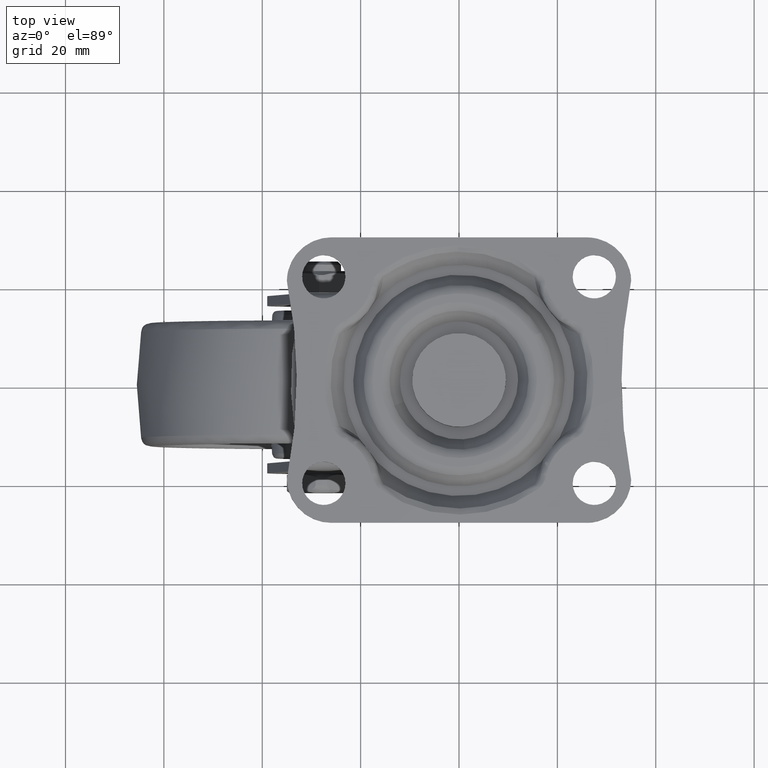
[diagram: clean part render]
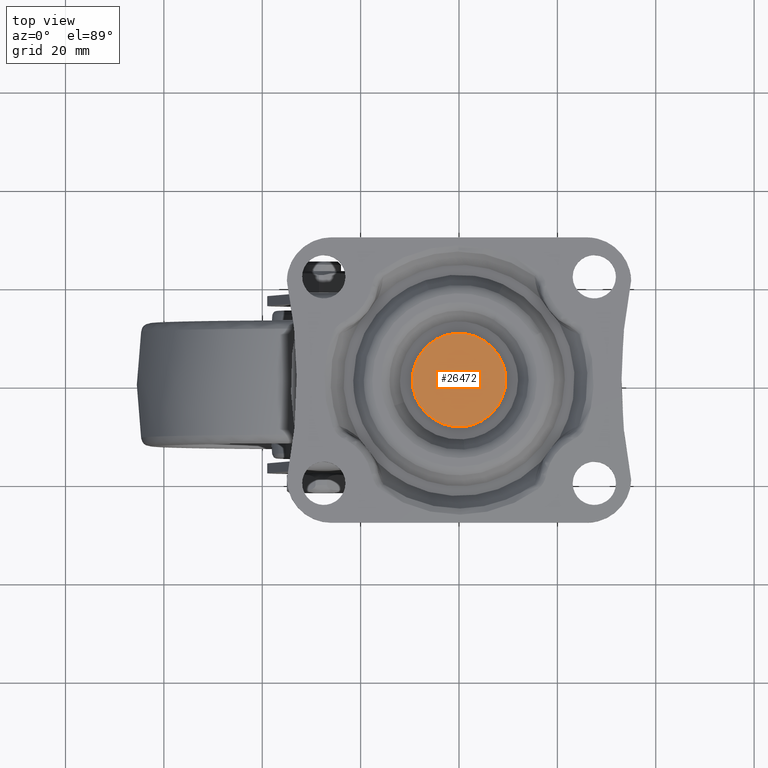
[diagram: same view with one face highlighted and labeled with its STEP entity id]
A machine part, top view. The second image highlights one B-rep face of the part: STEP entity #26472.
In plain terms, the highlighted face is a freeform B-spline surface patch.
Its self-contained STEP definition (entity closure, byte-faithful):
#25546=CARTESIAN_POINT('',(-1.121325229336613,9.433590500443252,4.543085E-016));
#25547=VERTEX_POINT('',#25546);
#25548=CARTESIAN_POINT('',(9.500000000000000,0.0,0.0));
#25549=VERTEX_POINT('',#25548);
#25550=CARTESIAN_POINT('',(-1.121325229336613,9.433590500443250,4.543085E-016));
#25551=CARTESIAN_POINT('',(-0.562629136791584,9.500000000000000,0.0));
#25552=CARTESIAN_POINT('',(0.0,9.500000000000000,0.0));
#25553=CARTESIAN_POINT('',(9.500000000000000,9.500000000000000,0.0));
#25554=CARTESIAN_POINT('',(9.500000000000000,0.0,0.0));
#25562=(BOUNDED_CURVE()B_SPLINE_CURVE(2,(#25550,#25551,#25552,#25553,#25554),.UNSPECIFIED.,.F.,.U.)B_SPLINE_CURVE_WITH_KNOTS((3,2,3),(0.229562473512154,0.250000000000000,0.500000000000000),.UNSPECIFIED.)CURVE()GEOMETRIC_REPRESENTATION_ITEM()RATIONAL_B_SPLINE_CURVE((0.956026754181045,0.976055948329558,1.0,0.707106781186548,1.0))REPRESENTATION_ITEM(''));
#25563=EDGE_CURVE('',#25547,#25549,#25562,.T.);
#25565=CARTESIAN_POINT('',(0.579957111287117,-9.482280830530769,-1.626477E-014));
#25566=VERTEX_POINT('',#25565);
#25567=CARTESIAN_POINT('',(9.500000000000000,0.0,0.0));
#25568=CARTESIAN_POINT('',(9.500000000000000,-8.936711426002024,0.0));
#25569=CARTESIAN_POINT('',(0.579957111287117,-9.482280830530769,-1.626477E-014));
#25577=(BOUNDED_CURVE()B_SPLINE_CURVE(2,(#25567,#25568,#25569),.UNSPECIFIED.,.F.,.U.)B_SPLINE_CURVE_WITH_KNOTS((3,3),(0.500000000000000,0.739333035289120),.UNSPECIFIED.)CURVE()GEOMETRIC_REPRESENTATION_ITEM()RATIONAL_B_SPLINE_CURVE((1.0,0.719603907703105,0.976072198227202))REPRESENTATION_ITEM(''));
#25578=EDGE_CURVE('',#25549,#25566,#25577,.T.);
#25645=CARTESIAN_POINT('',(-9.500000000000000,0.0,0.0));
#25646=VERTEX_POINT('',#25645);
#25647=CARTESIAN_POINT('',(-9.500000000000000,0.0,0.0));
#25648=CARTESIAN_POINT('',(-9.500000000000000,8.437657996362521,0.0));
#25649=CARTESIAN_POINT('',(-1.121325229336613,9.433590500443250,4.543085E-016));
#25657=(BOUNDED_CURVE()B_SPLINE_CURVE(2,(#25647,#25648,#25649),.UNSPECIFIED.,.F.,.U.)B_SPLINE_CURVE_WITH_KNOTS((3,3),(0.0,0.229562473512154),.UNSPECIFIED.)CURVE()GEOMETRIC_REPRESENTATION_ITEM()RATIONAL_B_SPLINE_CURVE((1.0,0.731050832856989,0.956026754181045))REPRESENTATION_ITEM(''));
#25658=EDGE_CURVE('',#25646,#25547,#25657,.T.);
#25692=CARTESIAN_POINT('',(0.579957111287117,-9.482280830530769,-1.626477E-014));
#25693=CARTESIAN_POINT('',(0.290249238561803,-9.500000000000000,0.0));
#25694=CARTESIAN_POINT('',(0.0,-9.500000000000000,0.0));
#25695=CARTESIAN_POINT('',(-9.500000000000000,-9.500000000000000,0.0));
#25696=CARTESIAN_POINT('',(-9.500000000000000,0.0,0.0));
#25704=(BOUNDED_CURVE()B_SPLINE_CURVE(2,(#25692,#25693,#25694,#25695,#25696),.UNSPECIFIED.,.F.,.U.)B_SPLINE_CURVE_WITH_KNOTS((3,2,3),(0.739333035289120,0.750000000000000,1.0),.UNSPECIFIED.)CURVE()GEOMETRIC_REPRESENTATION_ITEM()RATIONAL_B_SPLINE_CURVE((0.976072198227202,0.987502873483443,1.0,0.707106781186548,1.0))REPRESENTATION_ITEM(''));
#25705=EDGE_CURVE('',#25566,#25646,#25704,.T.);
#26461=CARTESIAN_POINT('',(-10.449049963174311,-10.448818919976739,0.0));
#26462=CARTESIAN_POINT('',(10.449050472794029,-10.448818919976739,0.0));
#26463=CARTESIAN_POINT('',(-10.449049963174311,10.448877186497240,0.0));
#26464=CARTESIAN_POINT('',(10.449050472794029,10.448877186497240,0.0));
#26465=B_SPLINE_SURFACE_WITH_KNOTS('',1,1,((#26461,#26463),(#26462,#26464)),.UNSPECIFIED.,.F.,.F.,.U.,(2,2),(2,2),(0.0,20.898100435968342),(0.0,20.897696106473969),.UNSPECIFIED.);
#26466=ORIENTED_EDGE('',*,*,#25705,.F.);
#26467=ORIENTED_EDGE('',*,*,#25578,.F.);
#26468=ORIENTED_EDGE('',*,*,#25563,.F.);
#26469=ORIENTED_EDGE('',*,*,#25658,.F.);
#26470=EDGE_LOOP('',(#26466,#26467,#26468,#26469));
#26471=FACE_OUTER_BOUND('',#26470,.T.);
#26472=ADVANCED_FACE('',(#26471),#26465,.T.);